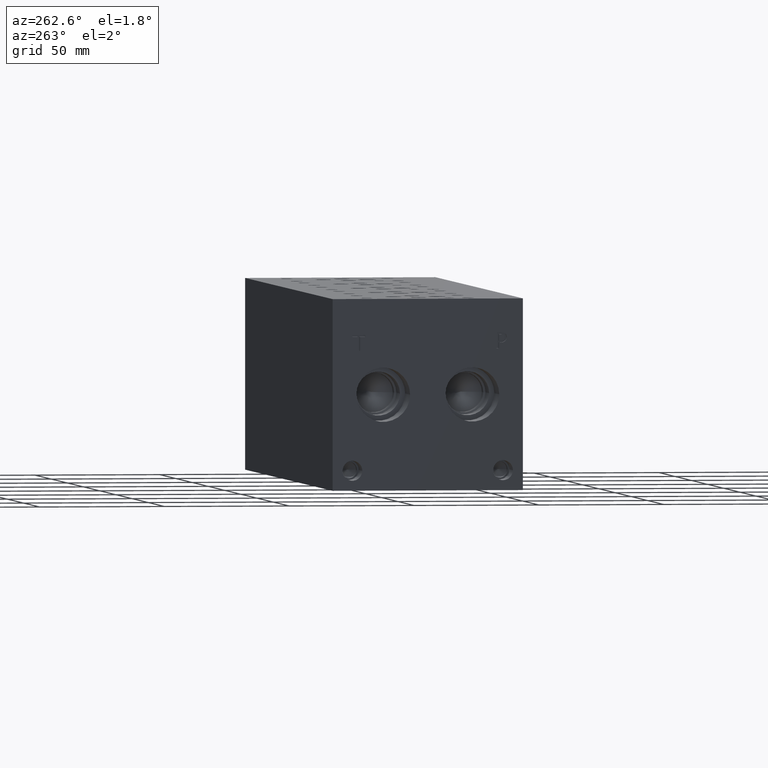
[diagram: clean part render]
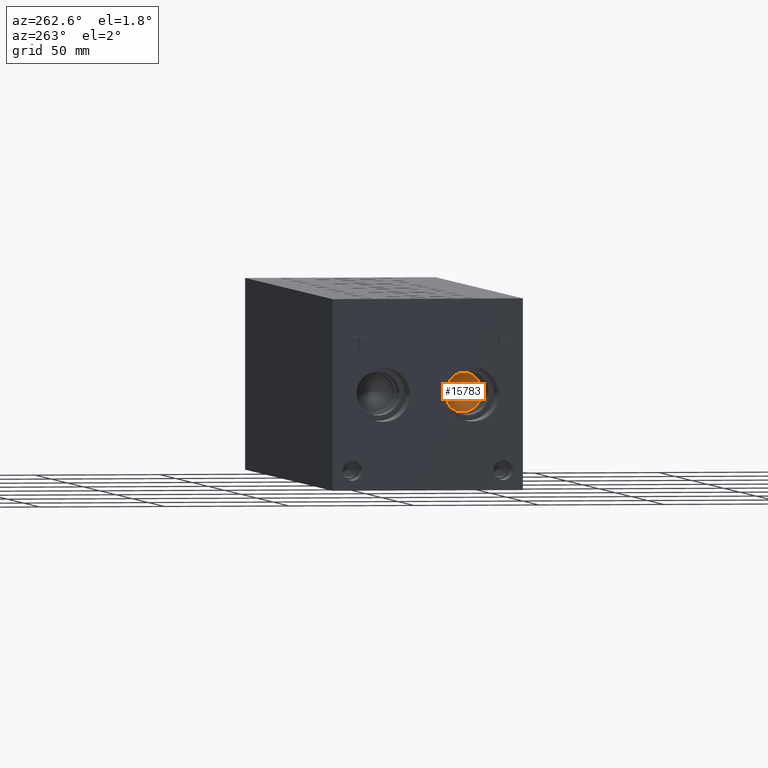
[diagram: same view with one face highlighted and labeled with its STEP entity id]
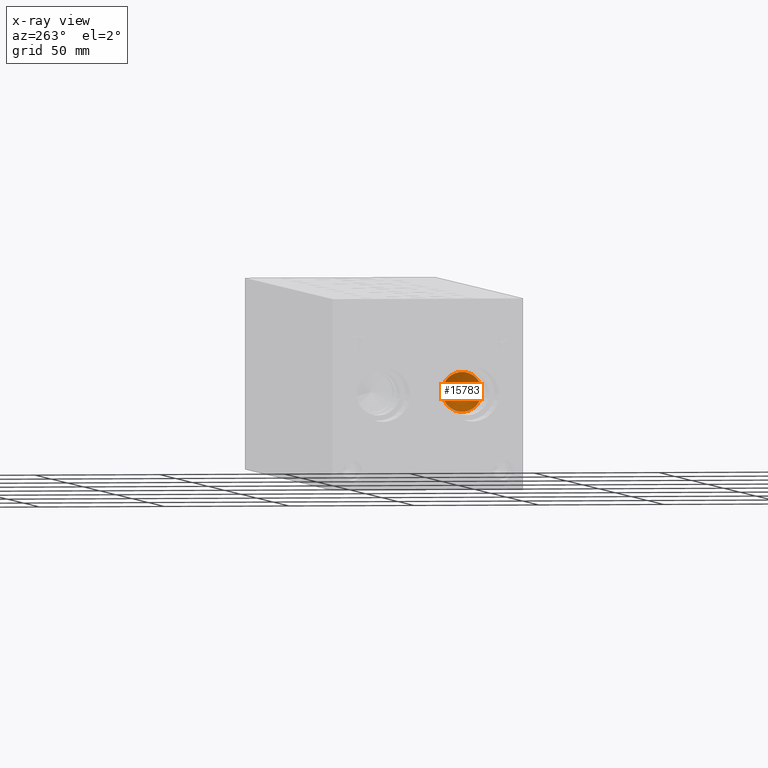
[diagram: x-ray of the same camera — body ghosted, the highlighted face saturated]
A machine part, auxiliary view. The second image highlights one B-rep face of the part: STEP entity #15783.
The next image is the same camera in x-ray: the body ghosted, the highlighted face saturated — about 0% of this face is hidden behind the body in this view.
In plain terms, the highlighted conical surface has half-angle 60 deg.
Its self-contained STEP definition (entity closure, byte-faithful):
#140=CONICAL_SURFACE('',#16540,3.96875,1.0471975511966);
#318=CIRCLE('',#16541,7.9375);
#319=CIRCLE('',#16542,7.9375);
#1848=FACE_OUTER_BOUND('',#2764,.T.);
#2764=EDGE_LOOP('',(#13541,#13542,#13543,#13544));
#4256=LINE('',#26771,#5655);
#5655=VECTOR('',#19417,3.96875);
#7429=VERTEX_POINT('',#26767);
#7430=VERTEX_POINT('',#26768);
#7431=VERTEX_POINT('',#26770);
#9552=EDGE_CURVE('',#7429,#7430,#318,.T.);
#9553=EDGE_CURVE('',#7430,#7431,#4256,.T.);
#9554=EDGE_CURVE('',#7430,#7429,#319,.T.);
#13541=ORIENTED_EDGE('',*,*,#9552,.T.);
#13542=ORIENTED_EDGE('',*,*,#9553,.T.);
#13543=ORIENTED_EDGE('',*,*,#9553,.F.);
#13544=ORIENTED_EDGE('',*,*,#9554,.T.);
#15783=ADVANCED_FACE('',(#1848),#140,.F.);
#16540=AXIS2_PLACEMENT_3D('',#26766,#19413,#19414);
#16541=AXIS2_PLACEMENT_3D('',#26769,#19415,#19416);
#16542=AXIS2_PLACEMENT_3D('',#26772,#19418,#19419);
#19413=DIRECTION('center_axis',(-1.,0.,0.));
#19414=DIRECTION('ref_axis',(0.,1.,0.));
#19415=DIRECTION('center_axis',(-1.,0.,0.));
#19416=DIRECTION('ref_axis',(0.,1.,0.));
#19417=DIRECTION('',(0.5,0.866025403784439,-1.06057523872491E-16));
#19418=DIRECTION('center_axis',(-1.,0.,0.));
#19419=DIRECTION('ref_axis',(0.,1.,0.));
#26766=CARTESIAN_POINT('Origin',(34.0413588808463,20.2438,38.1));
#26767=CARTESIAN_POINT('',(31.75,28.1813,38.1));
#26768=CARTESIAN_POINT('',(31.75,12.3063,38.1));
#26769=CARTESIAN_POINT('Origin',(31.75,20.2438,38.1));
#26770=CARTESIAN_POINT('',(36.3327177616927,20.2438,38.1));
#26771=CARTESIAN_POINT('',(34.0413588808463,16.27505,38.1));
#26772=CARTESIAN_POINT('Origin',(31.75,20.2438,38.1));